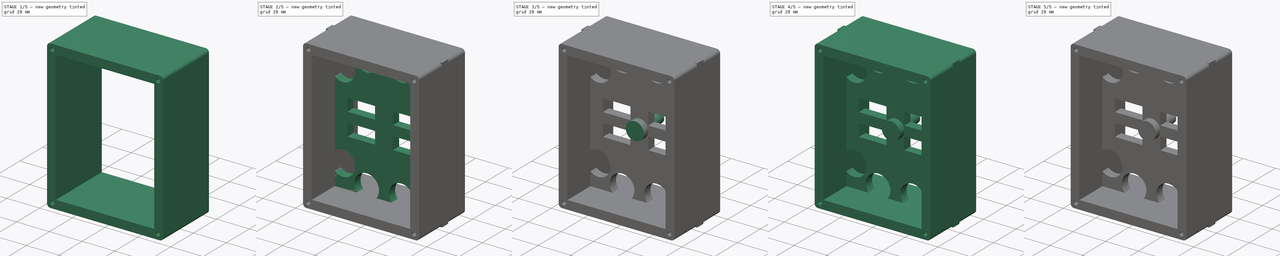
[diagram: build sequence overview — one tinted view per stage of 5, left to right]
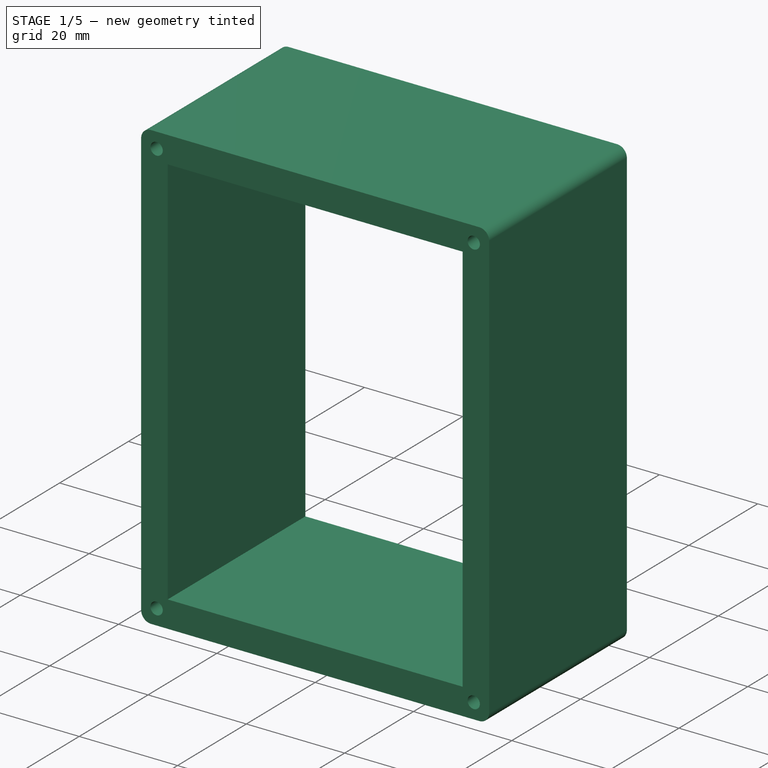
[diagram: stage 1 of 5 — iso view after this stage's code; geometry added in this stage tinted green]
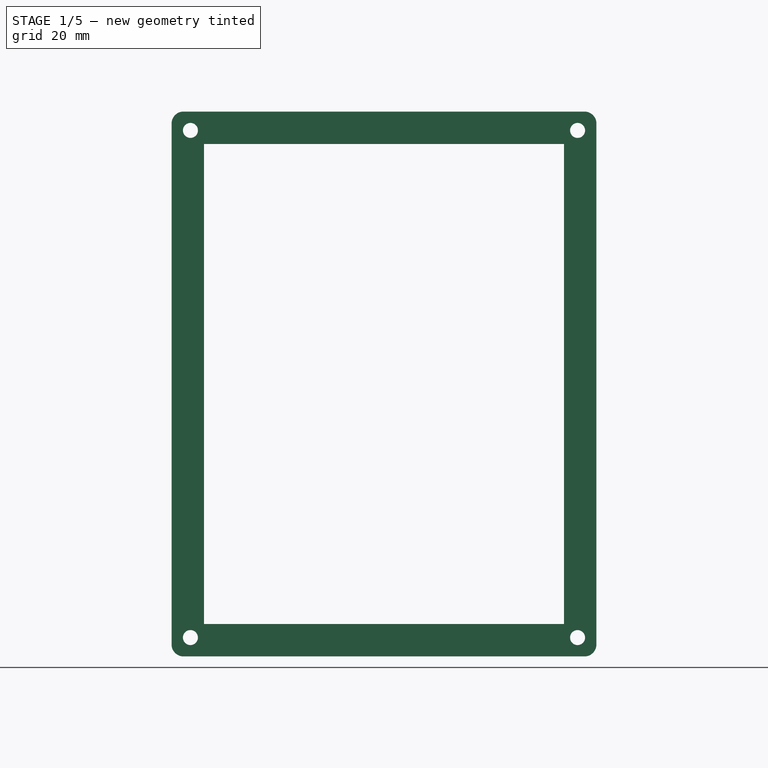
[diagram: stage 1 of 5 — front view after this stage's code; geometry added in this stage tinted green]
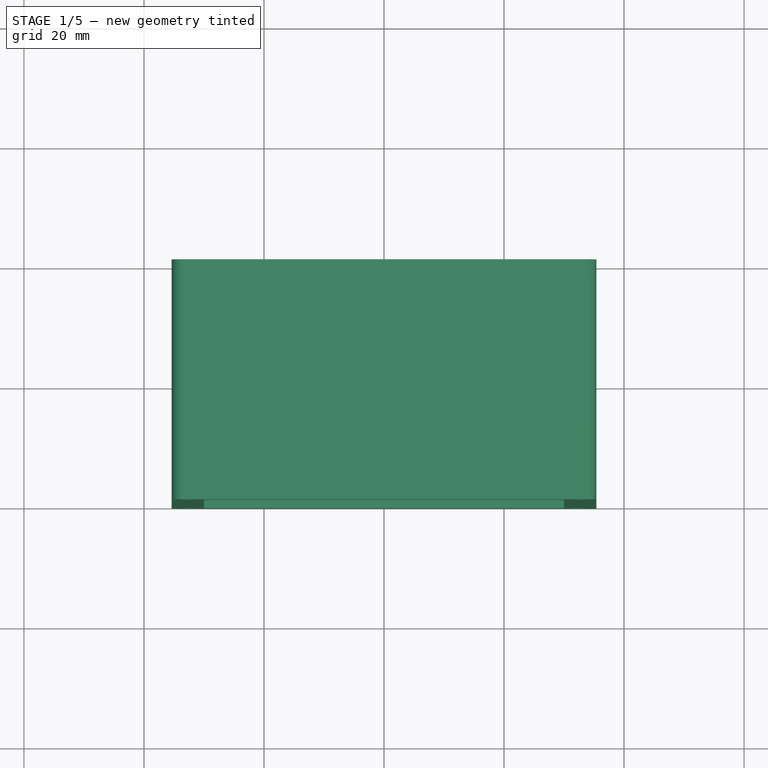
[diagram: stage 1 of 5 — top view after this stage's code; geometry added in this stage tinted green]
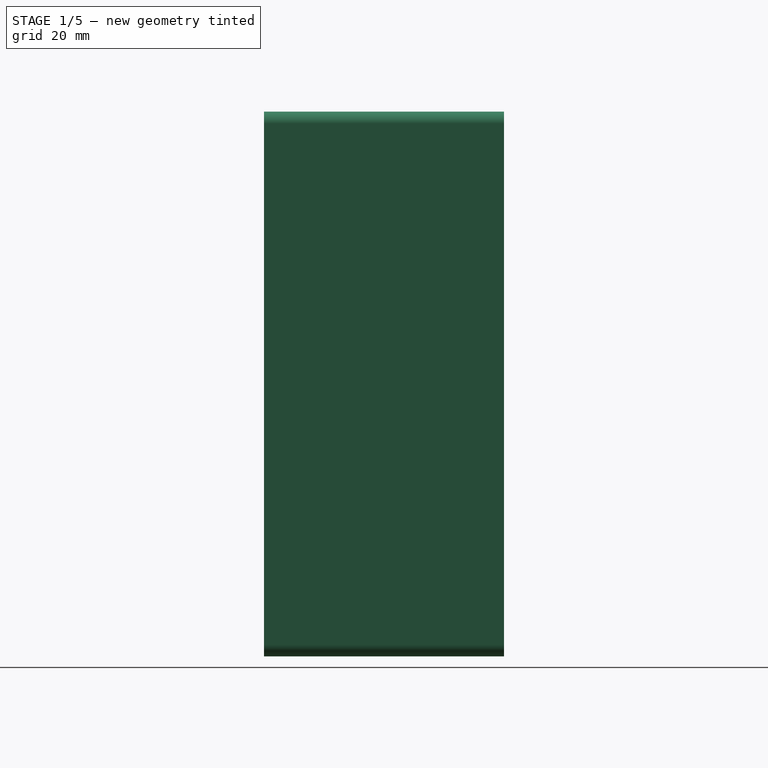
[diagram: stage 1 of 5 — right view after this stage's code; geometry added in this stage tinted green]
FCSTD DOCUMENT  (FreeCAD 1.0R39319 (Git))
Label: drone
License: All rights reserved
LicenseURL: https://en.wikipedia.org/wiki/All_rights_reserved
objects: PartDesign::Body×13, PartDesign::FeatureBase×8, Sketcher::SketchObject×6, App::DocumentObjectGroup×4, PartDesign::Mirrored×4, PartDesign::Pad×3, Spreadsheet::Sheet×2, PartDesign::Revolution×2, PartDesign::Pocket×1
note: 67 computed .brp shape members not serialized (recipe doc carries the construction recipe); baked Part::Feature solids carry a one-line shape summary decoded from their .brp

FEATURE [PartDesign::Body] Body014  label="topCap"
  AllowCompound = false
  Group = -> [Sketch004,Pad001,Mirrored002,Mirrored003]
  Origin = -> Origin014
  Placement = pos=(0,20,0) rot=(0,0,1;0rad)
  Tip = -> Mirrored003
  expr: .Placement.Base.y = <<sizes>>.cb_height / 2
FEATURE [Sketcher::SketchObject] Sketch005  label="bottomCapS"
  ArcFitTolerance = 1e-06
  AttachmentOffset = pos=(0,0,20) rot=(0,0,1;0rad)
  AttachmentSupport = -> [XZ_Plane003]
  FullyConstrained = true
  MakeInternals = false
  MapMode = 5
  Placement = pos=(0,-20,4.4e-15) rot=(1,0,0;1.5708rad)
  expr: .AttachmentOffset.Base.z = <<sizes>>.cb_height / 2
  expr: Constraints[13] = Sketch004.Constraints[13]
  expr: Constraints[17] = Sketch004.Constraints[17]
  expr: Constraints[18] = Sketch004.Constraints[14]
  expr: Constraints[5] = Sketch004.Constraints[3]
  expr: Constraints[6] = Sketch004.Constraints[3]
  sketch-geometry (12):
    g0: GeomPoint [constr] X=0 Y=0 Z=0
    g1: GeomPoint [constr] X=0 Y=0 Z=0
    g2: GeomPoint [constr] X=0 Y=0 Z=0
    g3: LineSegment StartX=0 StartY=0 StartZ=0 EndX=0 EndY=2 EndZ=0
    g4: LineSegment StartX=-2 StartY=0 StartZ=0 EndX=0 EndY=0 EndZ=0
    g5: ArcOfCircle CenterX=-2 CenterY=2 CenterZ=0 NormalX=0 NormalY=0 NormalZ=1 AngleXU=0 Radius=2 StartAngle=4.71239 EndAngle=6.28319
    g6: GeomPoint [constr] X=0 Y=0 Z=0
    g7: Circle CenterX=-4.42892 CenterY=0.358107 CenterZ=0 NormalX=0 NormalY=0 NormalZ=1 AngleXU=0 Radius=1.25
    g8: LineSegment StartX=0 StartY=0 StartZ=0 EndX=0 EndY=0 EndZ=0
    g9: LineSegment StartX=0 StartY=0 StartZ=0 EndX=0 EndY=0 EndZ=0
    g10: LineSegment [constr] StartX=-4.42892 StartY=0.358107 StartZ=0 EndX=0 EndY=0 EndZ=0
    g11: LineSegment [constr] StartX=-4.42892 StartY=0.358107 StartZ=0 EndX=0 EndY=0 EndZ=0
  constraints (19):
    c: Coincident(g3,g0)
    c: Vertical(g3)
    c: Coincident(g6,g1)
    c: Coincident(g4,g2)
    c: PointOnObject(g2,g-2)
    c: Radius(g5) = 2.5
    c: Diameter(g7) = 2.5
    c: Coincident(g8,g0)
    c: Coincident(g9,g8)
    c: Coincident(g9,g2)
    c: Coincident(g10,g7)
    c: Coincident(g3,g5)
    c: Coincident(g4,g5)
    c: Distance(g10) = 4.44338
    c: Equal(g3,g4)
    c: PointOnObject(g1,g3)
    c: PointOnObject(g1,g4)
    c: Angle(g3,g4) = 0
    c: Distance(g3,g4) = 15
FEATURE [PartDesign::Pad] Pad
  Direction = (0,-1,2e-16)
  Length = 40
  Length2 = 10
  Midplane = true
  Placement = pos=(0,0,0) rot=(1,0,0;1.5708rad)
  Profile = -> Sketch003
  ReferenceAxis = -> Sketch003 [N_Axis]
  Refine = true
  Suppressed = false
  Type = 0
  expr: Length = <<sizes>>.cb_height
FEATURE [PartDesign::Pad] Pad002
  BaseFeature = -> Pad
  Direction = (0,-1,2e-16)
  Length = 2.7
  Length2 = 10
  Placement = pos=(0,0,0) rot=(1,0,0;1.5708rad)
  Profile = -> Sketch005
  ReferenceAxis = -> Sketch005 [N_Axis]
  Refine = true
  Suppressed = false
  Type = 0
  expr: Length = <<sizes>>.cb_wall_thickness / 2
FEATURE [PartDesign::Mirrored] Mirrored  label="cb_half"
  BaseFeature = -> Pad002
  MirrorPlane = -> Sketch005 [V_Axis]
  Originals = -> [Pad002]
  Placement = pos=(0,0,0) rot=(1,0,0;1.5708rad)
  Refine = true
  Suppressed = false
  TransformMode = 1
FEATURE [PartDesign::Mirrored] Mirrored004  label="cb_full"
  BaseFeature = -> Mirrored
  MirrorPlane = -> XY_Plane003
  Originals = -> [Mirrored]
  Placement = pos=(0,0,0) rot=(1,0,0;1.5708rad)
  Refine = true
  Suppressed = false
  TransformMode = 1
FEATURE [PartDesign::Body] Body003  label="centerBox"
  AllowCompound = false
  Group = -> [Sketch003,Sketch005,Pad,Pad002,Mirrored,Mirrored004]
  Origin = -> Origin003
  Tip = -> Mirrored004
FEATURE [App::DocumentObjectGroup] Group001  label="frame"
  Group = -> [Body008,Group002,Body003]
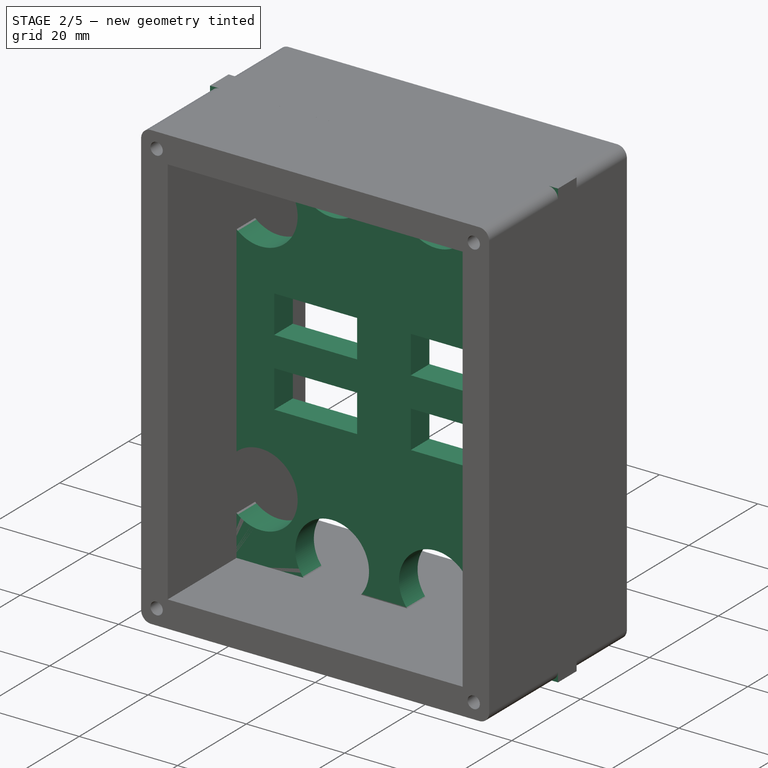
[diagram: stage 2 of 5 — iso view after this stage's code; geometry added in this stage tinted green]
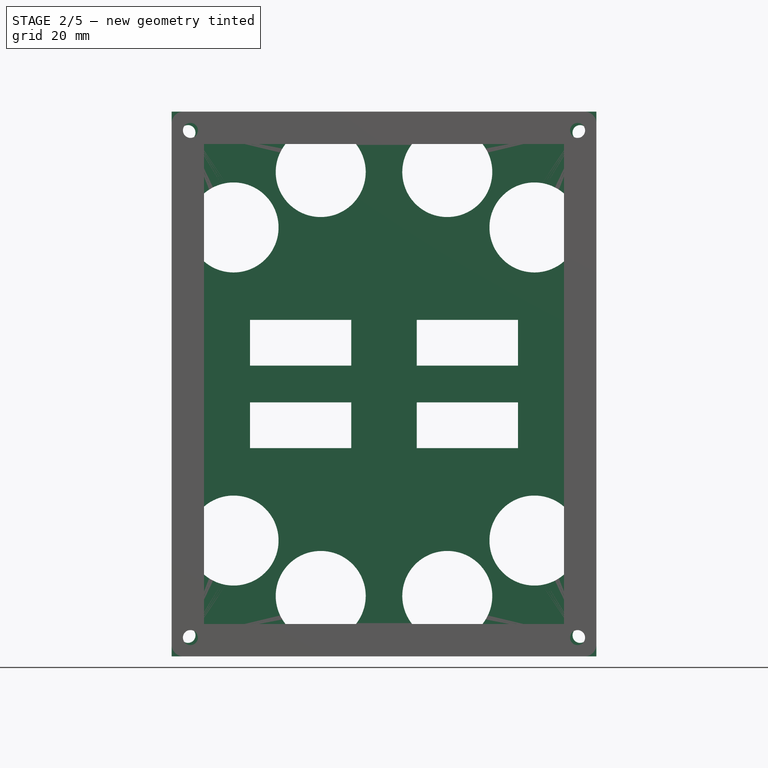
[diagram: stage 2 of 5 — front view after this stage's code; geometry added in this stage tinted green]
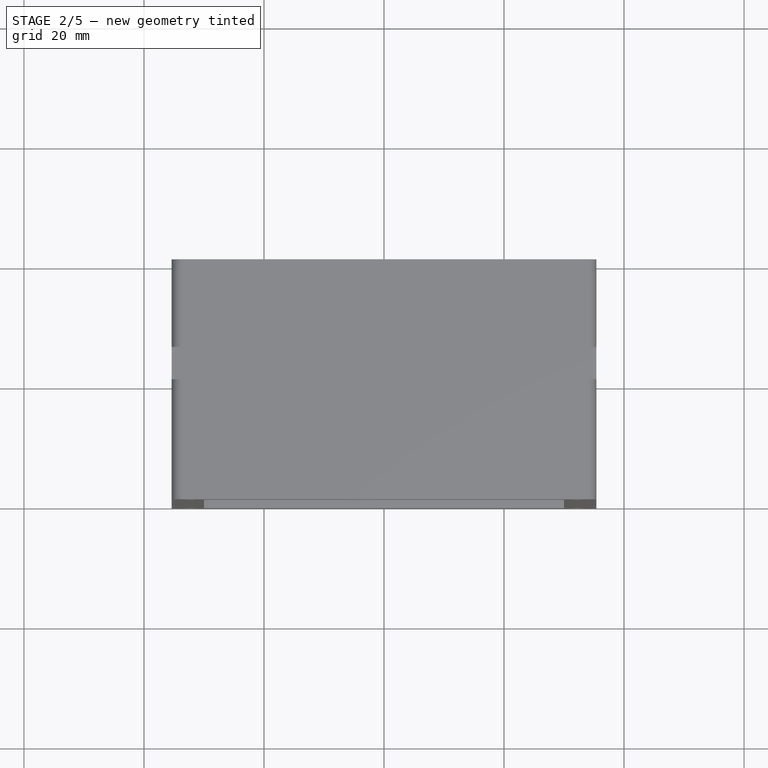
[diagram: stage 2 of 5 — top view after this stage's code; geometry added in this stage tinted green]
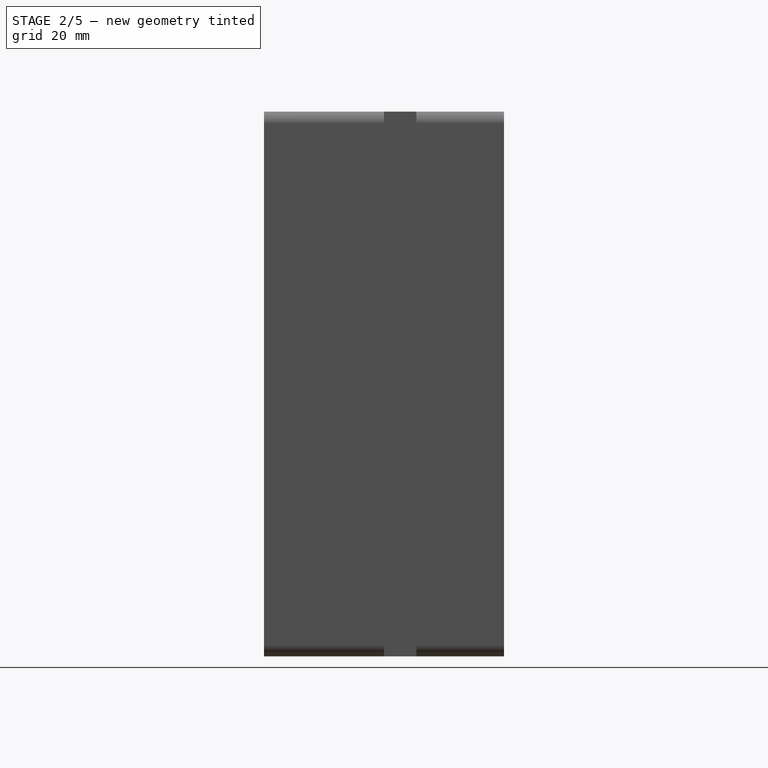
[diagram: stage 2 of 5 — right view after this stage's code; geometry added in this stage tinted green]
FEATURE [PartDesign::Body] Body013  label="mh4"
  AllowCompound = false
  Group = -> [Clone008]
  Origin = -> Origin013
  Placement = pos=(0,0,-100) rot=(0,0,1;0rad)
  Tip = -> Clone008
  expr: .Placement.Base.z = -<<sizes>>.mhd_length
FEATURE [App::DocumentObjectGroup] Group002  label="motorHolders"
  Group = -> [Body004,Body005,Body006,Body013]
FEATURE [Sketcher::SketchObject] Sketch004  label="topCap_quarterS"
  ArcFitTolerance = 1e-06
  AttachmentSupport = -> [XZ_Plane014]
  FullyConstrained = false
  MakeInternals = false
  MapMode = 5
  Placement = pos=(0,0,0) rot=(1,0,0;1.5708rad)
  expr: Constraints[13] = <<centerBox_quarterS>>.Constraints.cb_screwHole_distanceFrmCorner
  expr: Constraints[14] = <<sizes>>.cb_tc_ph_r * 2
  expr: Constraints[24] = <<centerBox_quarterS>>.Constraints.cb_tc_l
  expr: Constraints[25] = <<centerBox_quarterS>>.Constraints.cb_tc_width
  expr: Constraints[3] = Sketch003.Constraints[36]
  sketch-geometry (17):
    g0: GeomPoint [constr] X=-35.4 Y=0 Z=0
    g1: GeomPoint [constr] X=-35.4 Y=45.4 Z=0
    g2: GeomPoint [constr] X=0 Y=45.4 Z=0
    g3: GeomPoint [constr] X=-35.4 Y=45.4 Z=0
    g4: Circle CenterX=-32.6678 CenterY=41.8959 CenterZ=0 NormalX=0 NormalY=0 NormalZ=1 AngleXU=0 Radius=1.25
    g5: LineSegment StartX=-35.4 StartY=0 StartZ=0 EndX=0 EndY=0 EndZ=0
    g6: LineSegment StartX=0 StartY=0 StartZ=0 EndX=0 EndY=45.4 EndZ=0
    g7: LineSegment [constr] StartX=-32.6678 StartY=41.8959 StartZ=0 EndX=-35.4 EndY=45.4 EndZ=0
    g8: LineSegment [constr] StartX=-32.6678 StartY=41.8959 StartZ=0 EndX=0 EndY=0 EndZ=0
    g9: Circle CenterX=-25.0705 CenterY=26.0892 CenterZ=0 NormalX=0 NormalY=0 NormalZ=1 AngleXU=0 Radius=7.5
    g10: Circle CenterX=-10.5467 CenterY=35.3214 CenterZ=0 NormalX=0 NormalY=0 NormalZ=1 AngleXU=0 Radius=7.5
    g11: LineSegment StartX=-22.3312 StartY=10.6804 StartZ=0 EndX=-22.3312 EndY=3.05451 EndZ=0
    g12: LineSegment StartX=-22.3312 StartY=3.05451 StartZ=0 EndX=-5.45733 EndY=3.05451 EndZ=0
    g13: LineSegment StartX=-5.45733 StartY=3.05451 StartZ=0 EndX=-5.45733 EndY=10.6804 EndZ=0
    g14: LineSegment StartX=-5.45733 StartY=10.6804 StartZ=0 EndX=-22.3312 EndY=10.6804 EndZ=0
    g15: LineSegment StartX=-35.4 StartY=0 StartZ=0 EndX=-35.4 EndY=45.4 EndZ=0
    g16: LineSegment StartX=-35.4 StartY=45.4 StartZ=0 EndX=0 EndY=45.4 EndZ=0
  constraints (32):
    c: PointOnObject(g0,g-1)
    c: Coincident(g3,g1)
    c: PointOnObject(g2,g-2)
    c: Diameter(g4) = 2.5
    c: Coincident(g5,g0)
    c: Coincident(g5,g-1)
    c: Coincident(g6,g5)
    c: Coincident(g6,g2)
    c: Coincident(g7,g4)
    c: Coincident(g7,g1)
    c: Coincident(g8,g7)
    c: Coincident(g8,g5)
    c: Parallel(g7,g8)
    c: Distance(g7) = 4.44338
    c: Diameter(g9) = 15
    c: Equal(g9,g10)
    c: Coincident(g11,g12)
    c: Coincident(g12,g13)
    c: Coincident(g13,g14)
    c: Coincident(g14,g11)
    c: Vertical(g11)
    c: Vertical(g13)
    c: Horizontal(g12)
    c: Horizontal(g14)
    c: DistanceY(g6,g6) = 45.4
    c: DistanceX(g0,g5) = 35.4
    c: Coincident(g15,g0)
    c: Coincident(g15,g1)
    c: Vertical(g15)
    c: Coincident(g16,g1)
    c: Coincident(g16,g2)
    c: Horizontal(g16)
FEATURE [PartDesign::Pad] Pad001  label="topCap_quarterE"
  Direction = (0,-1,2e-16)
  Length = 5.4
  Length2 = 10
  Placement = pos=(0,0,0) rot=(1,0,0;1.5708rad)
  Profile = -> Sketch004
  ReferenceAxis = -> Sketch004 [N_Axis]
  Refine = true
  Reversed = true
  Suppressed = false
  Type = 0
  expr: Length = <<sizes>>.cb_wall_thickness
FEATURE [PartDesign::Mirrored] Mirrored002  label="tc_half"
  BaseFeature = -> Pad001
  MirrorPlane = -> Sketch004 [V_Axis]
  Originals = -> [Pad001]
  Placement = pos=(0,0,0) rot=(1,0,0;1.5708rad)
  Refine = true
  Suppressed = false
  TransformMode = 0
FEATURE [PartDesign::Mirrored] Mirrored003  label="tc_full"
  BaseFeature = -> Mirrored002
  MirrorPlane = -> XY_Plane014
  Originals = -> [Mirrored002]
  Placement = pos=(0,0,0) rot=(1,0,0;1.5708rad)
  Refine = true
  Suppressed = false
  TransformMode = 1
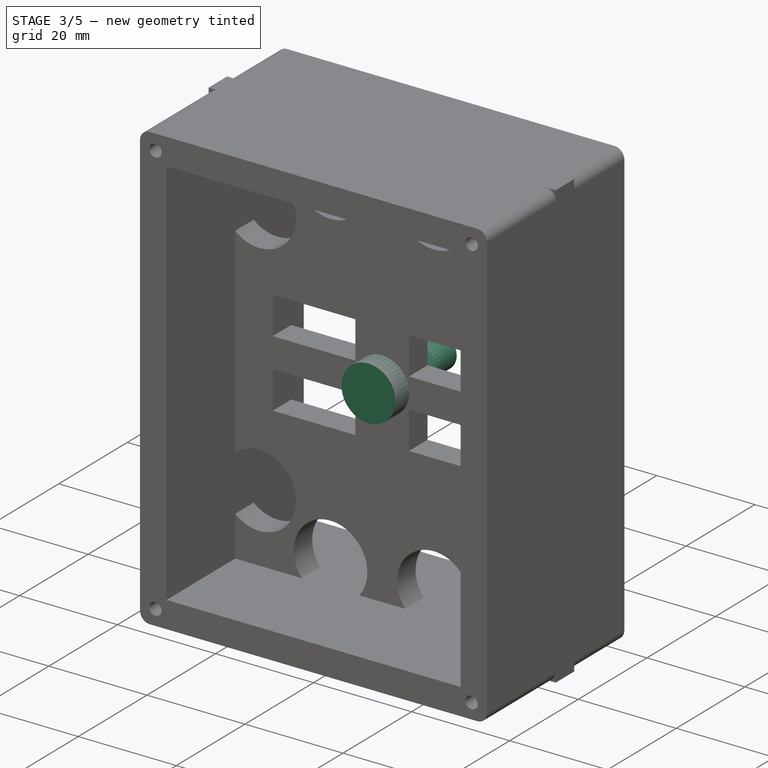
[diagram: stage 3 of 5 — iso view after this stage's code; geometry added in this stage tinted green]
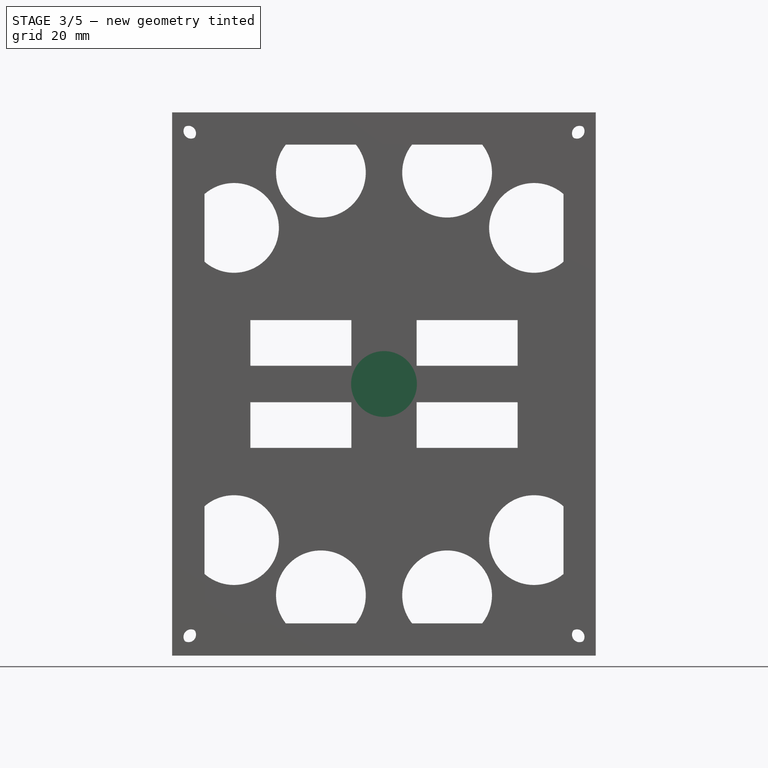
[diagram: stage 3 of 5 — front view after this stage's code; geometry added in this stage tinted green]
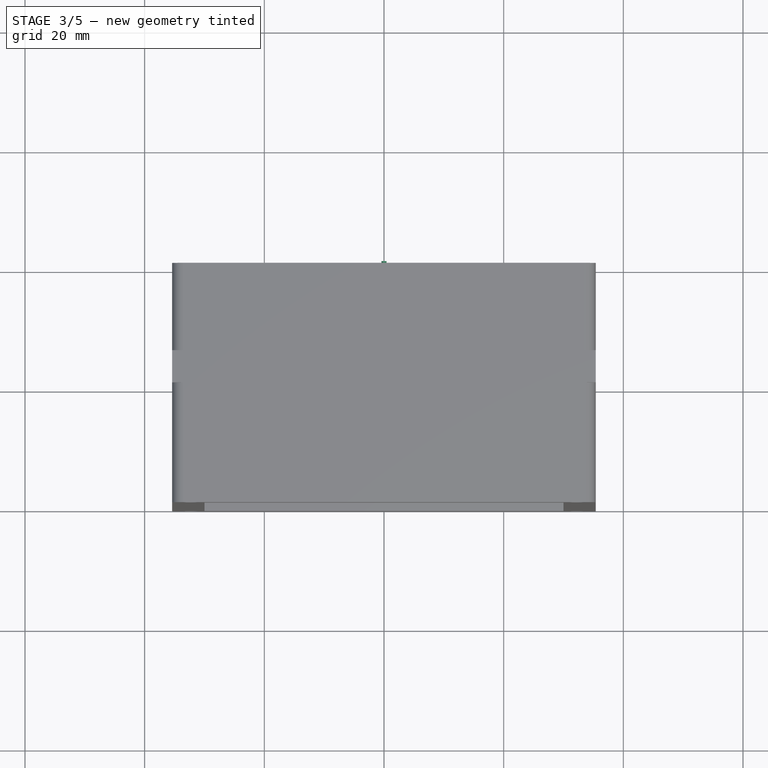
[diagram: stage 3 of 5 — top view after this stage's code; geometry added in this stage tinted green]
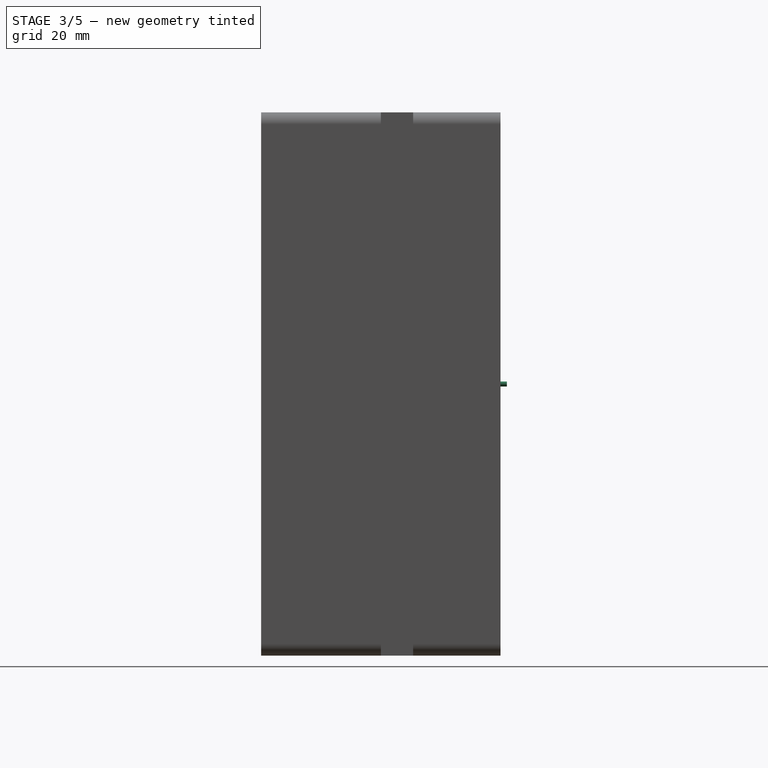
[diagram: stage 3 of 5 — right view after this stage's code; geometry added in this stage tinted green]
FEATURE [Spreadsheet::Sheet] Spreadsheet  label="properties"
  cells = A1='edge fillet radius; C1='motor; D1='height; E1='radius; F1='out wires distance ratio; A2(fcr)==2 mm; C2='motor; D2(mh)==16.7 mm; E2(mr)==3.5 mm; F2(motor_outWires_distance_ratio)==5.6 mm / 7 mm; A4='screwInsert; C4='screws; D4='inner diameter; A5(cb_cushion)==0.5 mm; C5='centerBox; D5(cb_screw_id)==3 mm; A7='wall thickness; C7='screw insert; D7='dia; A8(wall_thickness)==2 mm; C8='centerBox; D8(cb_si_dia)==4.4 mm
FEATURE [Sketcher::SketchObject] Sketch  label="motorS"
  ArcFitTolerance = 1e-06
  AttachmentSupport = -> [XY_Plane]
  FullyConstrained = true
  MakeInternals = false
  MapMode = 5
  expr: Constraints[10] = <<sizes>>.mr
  expr: Constraints[20] = <<sizes>>.sr
  expr: Constraints[21] = <<sizes>>.sh
  expr: Constraints[9] = <<sizes>>.mh
  sketch-geometry (8):
    g0: LineSegment StartX=0 StartY=0 StartZ=0 EndX=3.5 EndY=0 EndZ=0
    g1: LineSegment StartX=3.5 StartY=0 StartZ=0 EndX=3.5 EndY=16.7 EndZ=0
    g2: LineSegment StartX=3.5 StartY=16.7 StartZ=0 EndX=0 EndY=16.7 EndZ=0
    g3: LineSegment StartX=0 StartY=16.7 StartZ=0 EndX=0 EndY=0 EndZ=0
    g4: LineSegment StartX=0 StartY=16.7 StartZ=0 EndX=0.41 EndY=16.7 EndZ=0
    g5: LineSegment StartX=0.41 StartY=16.7 StartZ=0 EndX=0.41 EndY=21.06 EndZ=0
    g6: LineSegment StartX=0 StartY=21.06 StartZ=0 EndX=0 EndY=16.7 EndZ=0
    g7: LineSegment StartX=0 StartY=21.06 StartZ=0 EndX=0.41 EndY=21.06 EndZ=0
  constraints (22):
    c: Coincident(g0,g1)
    c: Coincident(g1,g2)
    c: Coincident(g2,g3)
    c: Coincident(g3,g0)
    c: Horizontal(g0)
    c: Horizontal(g2)
    c: Vertical(g1)
    c: Vertical(g3)
    c: Coincident(g0,g-1)
    c: DistanceY(g3,g3) = 16.7
    c: DistanceX(g2,g2) = 3.5
    c: Coincident(g4,g5)
    c: Coincident(g6,g4)
    c: Horizontal(g4)
    c: Vertical(g5)
    c: Vertical(g6)
    c: Coincident(g4,g2)
    c: Coincident(g7,g6)
    c: Coincident(g7,g5)
    c: Horizontal(g7)
    c: Distance(g5,g6) = 0.41
    c: DistanceY(g6,g6) = 4.36
FEATURE [PartDesign::Revolution] Revolution  label="motorR"
  Angle = 360
  Angle2 = 60
  Axis = (0,1,0)
  Base = (0,0,0)
  Profile = -> Sketch
  ReferenceAxis = -> Sketch [V_Axis]
  Refine = true
  Reversed = true
  Suppressed = false
  Type = 0
FEATURE [PartDesign::Body] Body  label="motor"
  AllowCompound = false
  Group = -> [Sketch,Revolution]
  Origin = -> Origin
  Tip = -> Revolution
FEATURE [Sketcher::SketchObject] Sketch001  label="motorMount"
  ArcFitTolerance = 1e-06
  AttachmentSupport = -> [YZ_Plane001]
  FullyConstrained = true
  MakeInternals = false
  MapMode = 5
  Placement = pos=(0,0,0) rot=(0.57735,0.57735,0.57735;2.0944rad)
  expr: Constraints[20] = <<sizes>>.motor_outWires_height
  expr: Constraints[21] = <<sizes>>.mh_base_thickness
  expr: Constraints[25] = <<sizes>>.motor_outWires_distance / 2
  expr: Constraints[26] = <<sizes>>.mh_ir
  expr: Constraints[28] = <<sizes>>.mh_height
  expr: Constraints[29] = <<sizes>>.mh_or
  sketch-geometry (10):
    g0: LineSegment StartX=-4 StartY=0 StartZ=0 EndX=-4 EndY=3.5 EndZ=0
    g1: LineSegment StartX=-4 StartY=3.5 StartZ=0 EndX=-4 EndY=5.5 EndZ=0
    g2: LineSegment StartX=-4 StartY=5.5 StartZ=0 EndX=0 EndY=5.5 EndZ=0
    g3: LineSegment StartX=0 StartY=5.5 StartZ=0 EndX=8.35 EndY=5.5 EndZ=0
    g4: LineSegment StartX=8.35 StartY=5.5 StartZ=0 EndX=8.35 EndY=3.5 EndZ=0
    g5: LineSegment StartX=8.35 StartY=3.5 StartZ=0 EndX=0 EndY=3.5 EndZ=0
    g6: LineSegment StartX=0 StartY=3.5 StartZ=0 EndX=0 EndY=2.8 EndZ=0
    g7: LineSegment StartX=0 StartY=2.8 StartZ=0 EndX=-2 EndY=2.8 EndZ=0
    g8: LineSegment StartX=-2 StartY=2.8 StartZ=0 EndX=-2 EndY=0 EndZ=0
    g9: LineSegment StartX=-2 StartY=0 StartZ=0 EndX=-4 EndY=0 EndZ=0
  constraints (30):
    c: PointOnObject(g0,g-1)
    c: Vertical(g0)
    c: Coincident(g0,g1)
    c: Vertical(g1)
    c: Coincident(g1,g2)
    c: PointOnObject(g2,g-2)
    c: Horizontal(g2)
    c: Coincident(g2,g3)
    c: Horizontal(g3)
    c: Coincident(g3,g4)
    c: Vertical(g4)
    c: Coincident(g4,g5)
    c: PointOnObject(g5,g-2)
    c: Horizontal(g5)
    c: Coincident(g5,g6)
    c: PointOnObject(g6,g-2)
    c: Coincident(g6,g7)
    c: Horizontal(g7)
    c: Coincident(g7,g8)
    c: Vertical(g8)
    c: Distance(g7,g7) = 2
    c: DistanceX(g2,g2) = 4
    c: Coincident(g9,g8)
    c: Coincident(g9,g0)
    c: Horizontal(g9)
    c: DistanceY(g8,g8) = 2.8
    c: DistanceY(g0,g0) = 3.5
    c: Equal(g1,g4)
    c: DistanceX(g3,g3) = 8.35
    c: DistanceY(g0,g1) = 5.5
FEATURE [Sketcher::SketchObject] Sketch002  label="outWires_hole"
  ArcFitTolerance = 1e-06
  AttachmentSupport = -> [YZ_Plane001]
  FullyConstrained = true
  MakeInternals = false
  MapMode = 5
  Placement = pos=(0,0,0) rot=(0.57735,0.57735,0.57735;2.0944rad)
  expr: Constraints[13] = <<sizes>>.motor_outWires_distance / 2
  expr: Constraints[14] = <<sizes>>.motor_outWires_height
  sketch-geometry (8):
    g0: GeomPoint [constr] X=0 Y=1.4 Z=0
    g1: GeomPoint [constr] X=0 Y=-1.4 Z=0
    g2: GeomPoint [constr] X=-2 Y=-1.4 Z=0
    g3: GeomPoint [constr] X=-2 Y=1.4 Z=0
    g4: LineSegment StartX=-2 StartY=1.4 StartZ=0 EndX=0 EndY=1.4 EndZ=0
    g5: LineSegment StartX=0 StartY=-1.4 StartZ=0 EndX=-2 EndY=-1.4 EndZ=0
    g6: LineSegment StartX=-2 StartY=1.4 StartZ=0 EndX=-2 EndY=-1.4 EndZ=0
    g7: LineSegment StartX=0 StartY=1.4 StartZ=0 EndX=0 EndY=-1.4 EndZ=0
  constraints (15):
    c: PointOnObject(g0,g-2)
    c: Symmetric(g0,g1,g-1)
    c: Coincident(g4,g3)
    c: Coincident(g4,g0)
    c: Parallel(g4,g-1)
    c: Coincident(g5,g1)
    c: Coincident(g5,g2)
    c: Horizontal(g5)
    c: Equal(g4,g5)
    c: Coincident(g6,g3)
    c: Coincident(g6,g2)
    c: Coincident(g7,g0)
    c: Coincident(g7,g1)
    c: DistanceY(g7,g7) = 2.8
    c: DistanceX(g5,g5) = 2
FEATURE [PartDesign::Revolution] Revolution001  label="motorHolderR"
  Angle = 360
  Angle2 = 60
  Axis = (0,1,0)
  Base = (0,0,0)
  Placement = pos=(0,0,0) rot=(1,1,1;2.0944rad)
  Profile = -> Sketch001
  ReferenceAxis = -> Sketch001 [H_Axis]
  Refine = true
  Suppressed = false
  Type = 0
FEATURE [PartDesign::Pocket] Pocket
  BaseFeature = -> Revolution001
  Direction = (-1,0,0)
  Length = 5.5
  Length2 = 5
  Placement = pos=(0,0,0) rot=(1,1,1;2.0944rad)
  Profile = -> Sketch002
  ReferenceAxis = -> Sketch002 [N_Axis]
  Refine = true
  Suppressed = false
  Type = 0
  expr: Length = <<sizes>>.mr + <<sizes>>.mh_wallThickness
FEATURE [PartDesign::Body] Body012  label="motor4"
  AllowCompound = false
  Group = -> [Clone007]
  Origin = -> Origin012
  Placement = pos=(0,0,-100) rot=(0,0,1;0rad)
  Tip = -> Clone007
  expr: .Placement.Base.z = <<mh4>>.Placement.Base.z
FEATURE [App::DocumentObjectGroup] Group003  label=" motors"
  Group = -> [Body011,Body010,Body009,Body012]
FEATURE [PartDesign::FeatureBase] Clone008
  BaseFeature = -> Body001
  Suppressed = false
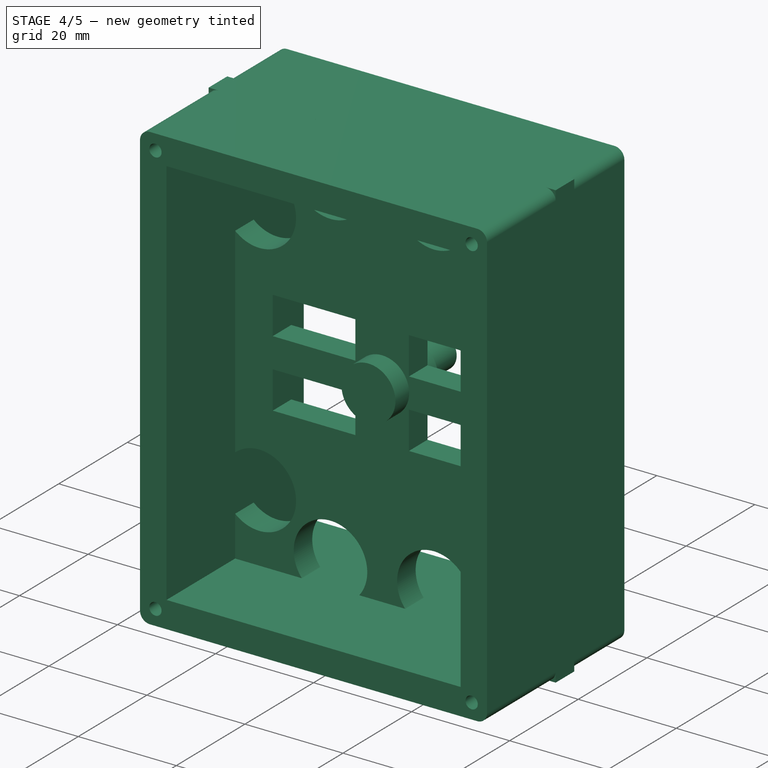
[diagram: stage 4 of 5 — iso view after this stage's code; geometry added in this stage tinted green]
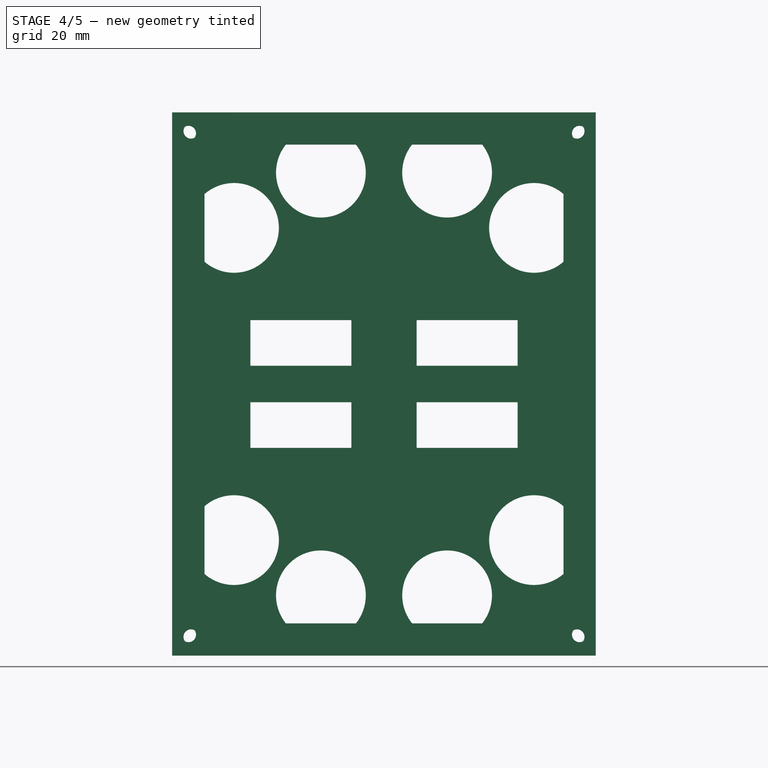
[diagram: stage 4 of 5 — front view after this stage's code; geometry added in this stage tinted green]
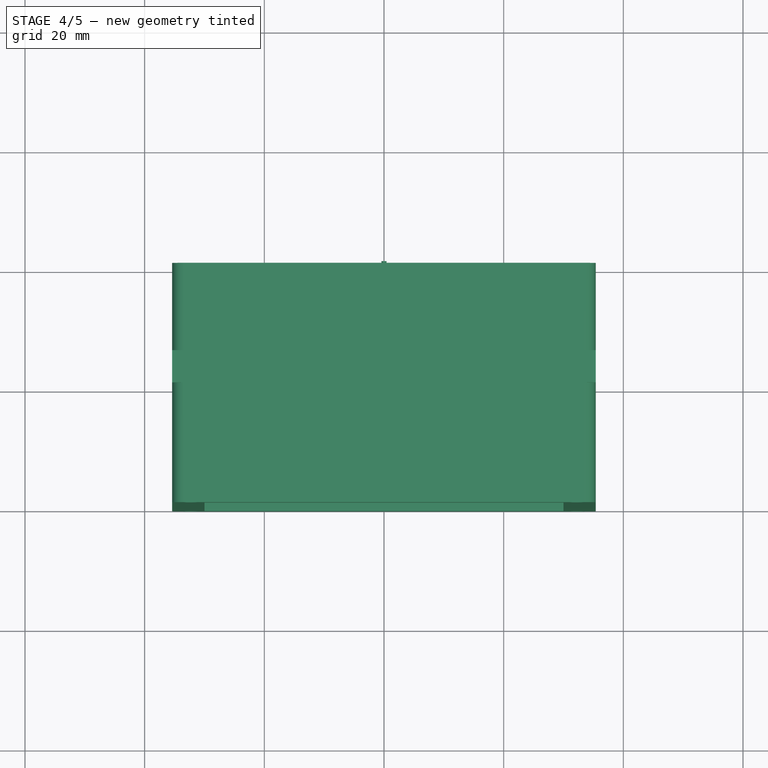
[diagram: stage 4 of 5 — top view after this stage's code; geometry added in this stage tinted green]
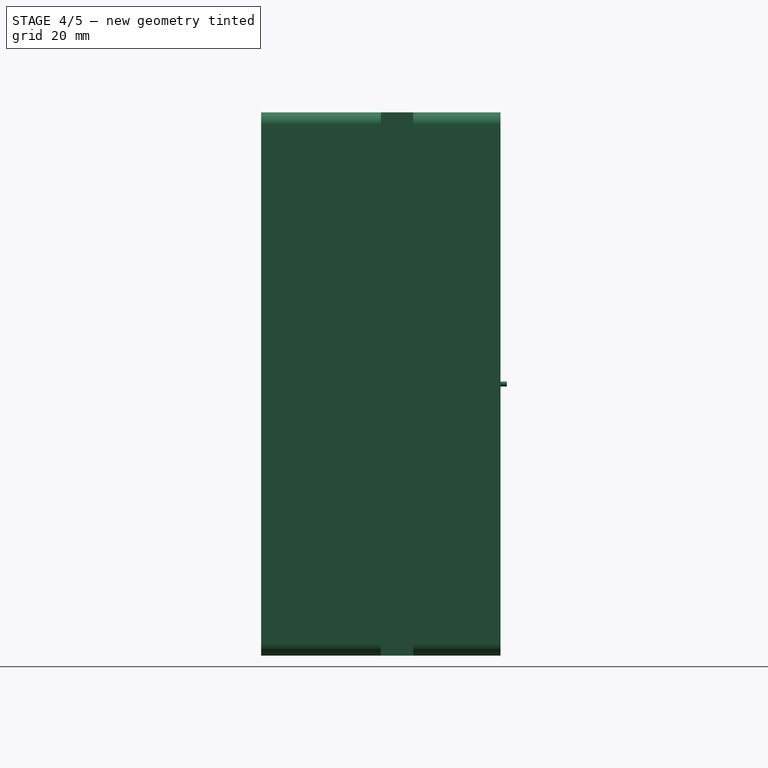
[diagram: stage 4 of 5 — right view after this stage's code; geometry added in this stage tinted green]
FEATURE [PartDesign::Body] Body001  label="motorHolder"
  AllowCompound = false
  Group = -> [Sketch001,Sketch002,Revolution001,Pocket]
  Origin = -> Origin001
  Tip = -> Pocket
FEATURE [Sketcher::SketchObject] Sketch003  label="centerBox_quarterS"
  ArcFitTolerance = 1e-06
  AttachmentSupport = -> [XZ_Plane003]
  FullyConstrained = true
  MakeInternals = false
  MapMode = 5
  Placement = pos=(0,0,0) rot=(1,0,0;1.5708rad)
  expr: Constraints[27] = <<sizes>>.cb_wall_thickness
  expr: Constraints[28] = <<sizes>>.cb_length / 2
  expr: Constraints[29] = <<sizes>>.cb_width / 2
  expr: Constraints[34] = <<sizes>>.cb_wall_curve_radius
  expr: Constraints[36] = <<sizes>>.cb_screw_id
  sketch-geometry (24):
    g0: GeomPoint [constr] X=-35.4 Y=0 Z=0
    g1: GeomPoint [constr] X=-30 Y=0 Z=0
    g2: GeomPoint [constr] X=-30 Y=40 Z=0
    g3: GeomPoint [constr] X=0 Y=40 Z=0
    g4: GeomPoint [constr] X=-35.4 Y=40 Z=0
    g5: GeomPoint [constr] X=-35.4 Y=45.4 Z=0
    g6: GeomPoint [constr] X=-30 Y=45.4 Z=0
    g7: GeomPoint [constr] X=0 Y=45.4 Z=0
    g8: LineSegment StartX=-30 StartY=0 StartZ=0 EndX=-30 EndY=40 EndZ=0
    g9: LineSegment StartX=-30 StartY=40 StartZ=0 EndX=0 EndY=40 EndZ=0
    g10: LineSegment StartX=-35.4 StartY=0 StartZ=0 EndX=-35.4 EndY=40 EndZ=0
    g11: LineSegment StartX=-35.4 StartY=40 StartZ=0 EndX=-35.4 EndY=43.4 EndZ=0
    g12: LineSegment StartX=-33.4 StartY=45.4 StartZ=0 EndX=-30 EndY=45.4 EndZ=0
    g13: LineSegment StartX=-30 StartY=45.4 StartZ=0 EndX=0 EndY=45.4 EndZ=0
    g14: LineSegment [constr] StartX=-30 StartY=40 StartZ=0 EndX=-35.4 EndY=40 EndZ=0
    g15: LineSegment [constr] StartX=-30 StartY=40 StartZ=0 EndX=-30 EndY=45.4 EndZ=0
    g16: ArcOfCircle CenterX=-33.4 CenterY=43.4 CenterZ=0 NormalX=0 NormalY=0 NormalZ=1 AngleXU=0 Radius=2 StartAngle=1.5708 EndAngle=3.14159
    g17: GeomPoint [constr] X=-35.4 Y=45.4 Z=0
    g18: Circle CenterX=-32.2581 CenterY=42.2581 CenterZ=0 NormalX=0 NormalY=0 NormalZ=1 AngleXU=0 Radius=1.25
    g19: LineSegment [constr] StartX=-30 StartY=40 StartZ=0 EndX=-32.2581 EndY=42.2581 EndZ=0
    g20: LineSegment [constr] StartX=-33.1419 StartY=43.1419 StartZ=0 EndX=-35.4 EndY=45.4 EndZ=0
    g21: LineSegment [constr] StartX=-33.1419 StartY=43.1419 StartZ=0 EndX=-32.2581 EndY=42.2581 EndZ=0
    g22: LineSegment StartX=-35.4 StartY=0 StartZ=0 EndX=-30 EndY=0 EndZ=0
    g23: LineSegment StartX=0 StartY=45.4 StartZ=0 EndX=0 EndY=40 EndZ=0
  constraints (54):
    c: PointOnObject(g0,g-1)
    c: PointOnObject(g1,g-1)
    c: PointOnObject(g3,g-2)
    c: Coincident(g8,g1)
    c: Coincident(g8,g2)
    c: Vertical(g8)
    c: Coincident(g8,g9)
    c: Coincident(g9,g3)
    c: Coincident(g10,g0)
    c: Coincident(g10,g4)
    c: Vertical(g10)
    c: Coincident(g10,g11)
    c: Coincident(g17,g5)
    c: Coincident(g12,g6)
    c: Coincident(g12,g13)
    c: Coincident(g13,g7)
    c: PointOnObject(g7,g-2)
    c: Parallel(g11,g10)
    c: Parallel(g12,g13)
    c: PointOnObject(g6,g8)
    c: PointOnObject(g4,g9)
    c: Coincident(g14,g2)
    c: Coincident(g14,g4)
    c: Horizontal(g14)
    c: Coincident(g15,g2)
    c: Coincident(g15,g6)
    c: Parallel(g13,g9)
    c: DistanceY(g15,g15) = 5.4
    c: DistanceY(g8,g8) = 40
    c: DistanceX(g9,g9) = 30
    c: PointOnObject(g17,g12)
    c: PointOnObject(g17,g11)
    c: Tangent(g12,g16) = 1.5708
    c: Tangent(g11,g16) = 1.5708
    c: Radius(g16) = 2
    c: Equal(g14,g15)
    c: Diameter(g18) = 2.5
    c: Coincident(g19,g2)
    c: Coincident(g19,g18)
    c: PointOnObject(g20,g18)
    c: Coincident(g20,g5)
    c: Coincident(g21,g20)
    c: Coincident(g21,g18)
    c: Parallel(g20,g21)
    c: Parallel(g21,g19)
    c: Equal(g19,g20)
    c: Coincident(g22,g0)
    c: Coincident(g22,g1)
    c: Coincident(g23,g7)
    c: Coincident(g23,g3)
    c: DistanceY(g0,g5) = 45.4  'cb_tc_l'
    c: DistanceX(g5,g-1) = 35.4  'cb_tc_width'
    c: Distance(g18,g5) = 4.44338  'cb_screwHole_distanceFrmCorner'
    c: Distance(g11,g12) = 2.82843  'fillet_points_distance'
FEATURE [PartDesign::FeatureBase] Clone
  BaseFeature = -> Body001
  Suppressed = false
FEATURE [PartDesign::Body] Body010  label="motor2"
  AllowCompound = false
  Group = -> [Clone005]
  Origin = -> Origin010
  Placement = pos=(-100,0,0) rot=(0,0,1;0rad)
  Tip = -> Clone005
  expr: .Placement.Base.x = <<mh2>>.Placement.Base.x
FEATURE [PartDesign::FeatureBase] Clone006
  BaseFeature = -> Body
  Suppressed = false
FEATURE [PartDesign::Body] Body011  label="motor1"
  AllowCompound = false
  Group = -> [Clone006]
  Origin = -> Origin011
  Placement = pos=(100,0,0) rot=(0,0,1;0rad)
  Tip = -> Clone006
  expr: .Placement.Base.x = <<mh1>>.Placement.Base.x
FEATURE [PartDesign::FeatureBase] Clone007
  BaseFeature = -> Body
  Suppressed = false
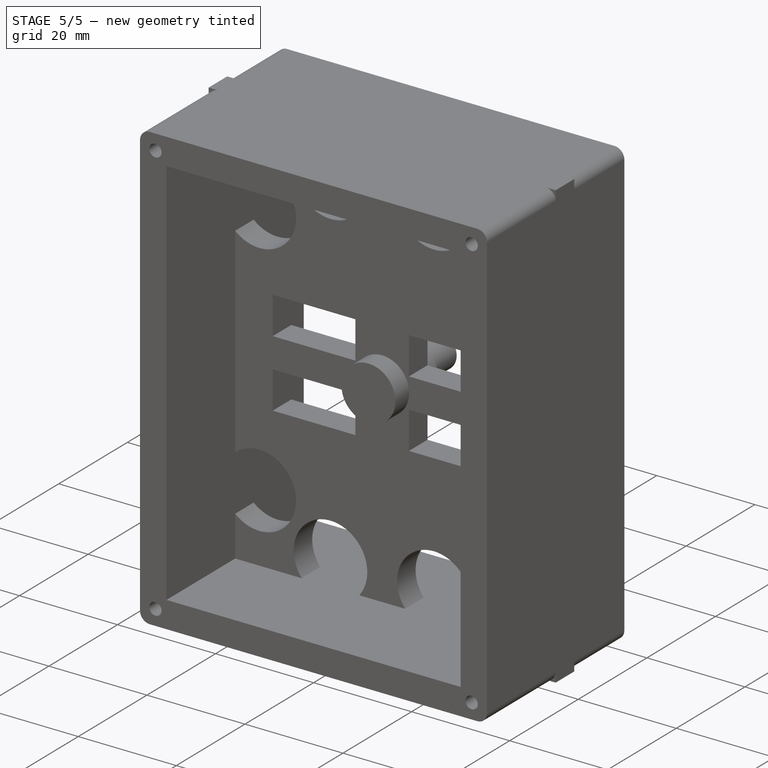
[diagram: stage 5 of 5 — iso view after this stage's code; geometry added in this stage tinted green]
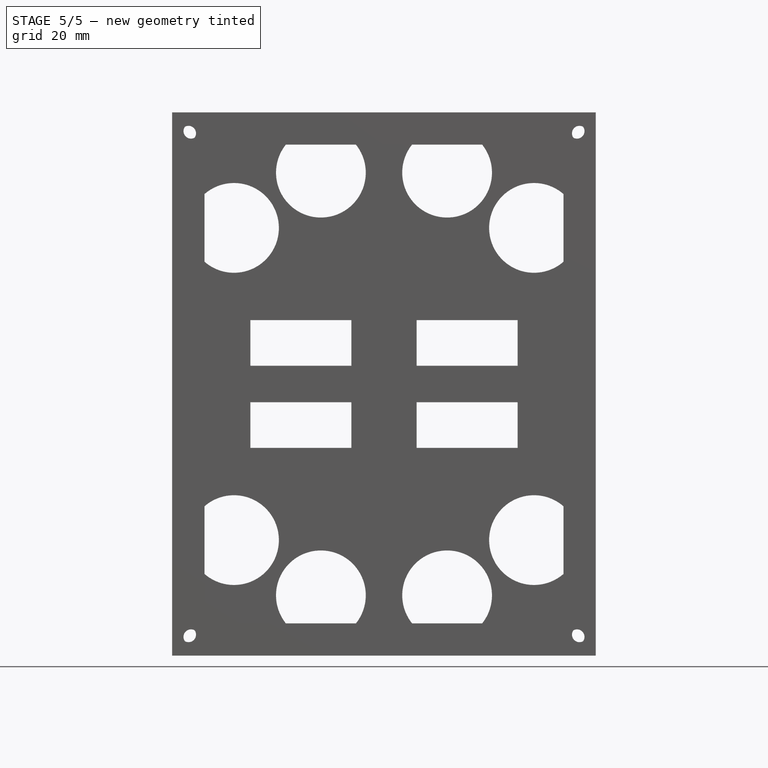
[diagram: stage 5 of 5 — front view after this stage's code; geometry added in this stage tinted green]
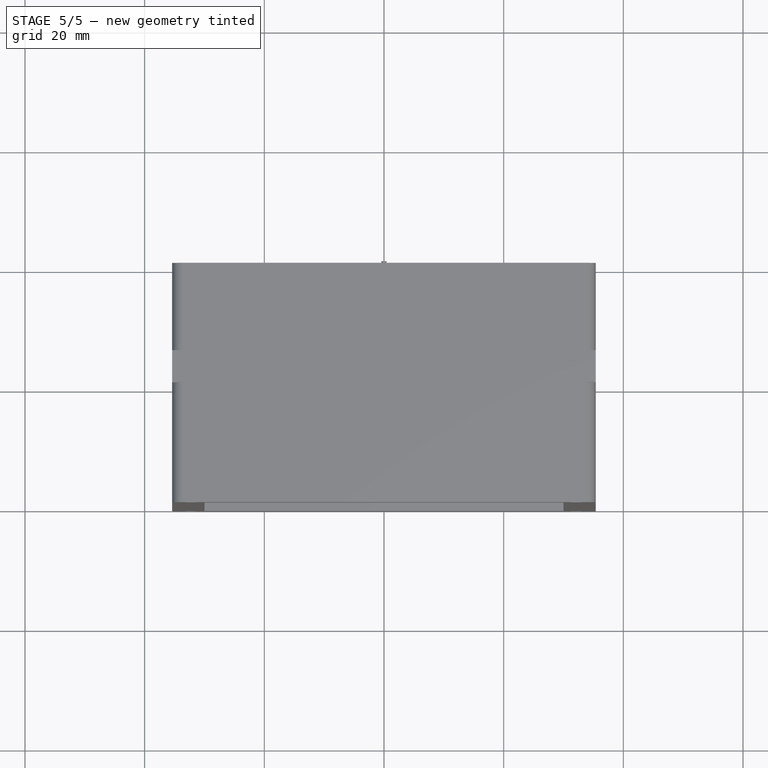
[diagram: stage 5 of 5 — top view after this stage's code; geometry added in this stage tinted green]
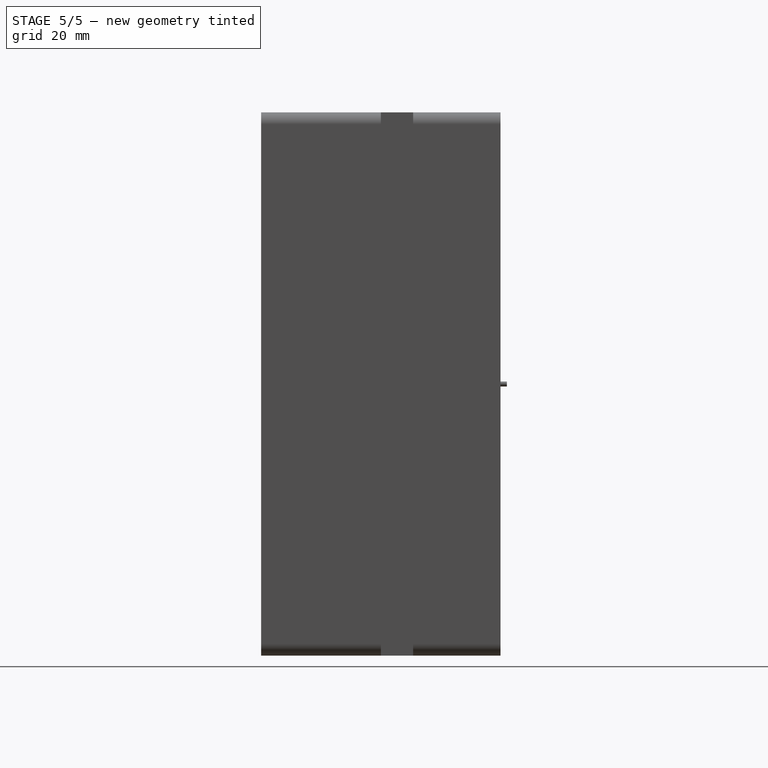
[diagram: stage 5 of 5 — right view after this stage's code; geometry added in this stage tinted green]
FEATURE [PartDesign::Body] Body004  label="mh1"
  AllowCompound = false
  Group = -> [Clone]
  Origin = -> Origin004
  Placement = pos=(100,0,0) rot=(0,0,1;0rad)
  Tip = -> Clone
  expr: .Placement.Base.x = <<sizes>>.mhd_length
FEATURE [PartDesign::FeatureBase] Clone001
  BaseFeature = -> Body001
  Placement = pos=(0,0,0) rot=(0,1,0;3.14159rad)
  Suppressed = false
FEATURE [PartDesign::Body] Body005  label="mh2"
  AllowCompound = false
  Group = -> [Clone001]
  Origin = -> Origin005
  Placement = pos=(-100,0,0) rot=(0,0,1;0rad)
  Tip = -> Clone001
  expr: .Placement.Base.x = -<<sizes>>.mhd_length
FEATURE [PartDesign::FeatureBase] Clone002
  BaseFeature = -> Body001
  Placement = pos=(0,0,0) rot=(0,1,0;-1.5708rad)
  Suppressed = false
FEATURE [PartDesign::Body] Body006  label="mh3"
  AllowCompound = false
  Group = -> [Clone002]
  Origin = -> Origin006
  Placement = pos=(0,0,100) rot=(0,0,1;0rad)
  Tip = -> Clone002
  expr: .Placement.Base.z = <<sizes>>.mhd_length
FEATURE [PartDesign::Body] Body008  label="motorHolder_displacer"
  AllowCompound = false
  Origin = -> Origin008
  Placement = pos=(-5.5,0,0) rot=(0,0,1;0rad)
  expr: .Placement.Base.x = -<<sizes>>.mh_or
FEATURE [Spreadsheet::Sheet] Spreadsheet001  label="sizes"
  cells = A1='motor; A2='motor; B2='height; C2='radius; A3='motor; B3(mh)==<<properties>>.mh; C3(mr)==<<properties>>.mr; A4='shaft; B4(sh)==4.36 mm; C4(sr)==0.41 mm; A5='motor out wires; B5='distance; C5='height; D5='thickness; A6='motor; B6(motor_outWires_distance)==<<properties>>.motor_outWires_distance_ratio * mr * 2; C6(motor_outWires_height)==2 mm; D6(motor_outWires_thickness)==1 mm; A8='frame; A9=1; B9='length; C9='width; D9='height; E9='wall thickness; F9='wall curve radius; G9='screwHolder inner diameter; H9='screwHolder outer diameter; A10='centerBox; B10(cb_length)==8 cm; C10(cb_width)==6 cm; D10(cb_height)==4 cm; E10(cb_wall_thickness)==cb_sh_od + <<properties>>.cb_cushion * 2; F10(cb_wall_curve_radius)==2 mm; G10(cb_screw_id)==<<properties>>.cb_screw_id - <<properties>>.cb_cushion; H10(cb_sh_od)==<<properties>>.cb_si_dia; A11=2; B11='wall thickness; C11='height; D11='base thickness; E11='inner radius; F11='outer radius; A12='motor holder; B12(mh_wallThickness)==2 mm; C12(mh_height)==mh / 2; D12(mh_base_thickness)==4 mm; E12(mh_ir)==mr; F12(mh_or)==mr + mh_wallThickness; A13=3; B13='length; C13='wall thickness; A14='motorHolder displacer; B14(mhd_length)==100 mm; C14(mhd_wall_thickness)==<<properties>>.wall_thickness; A16='peep hole; B16='radius; A17='centerBox_topCap; B17(cb_tc_ph_r)==7.5 mm
FEATURE [App::DocumentObjectGroup] Group  label="props_spreadsheets"
  Group = -> [Spreadsheet001,Spreadsheet]
FEATURE [PartDesign::FeatureBase] Clone004
  BaseFeature = -> Body
  Suppressed = false
FEATURE [PartDesign::Body] Body009  label="motor3"
  AllowCompound = false
  Group = -> [Clone004]
  Origin = -> Origin009
  Placement = pos=(0,0,100) rot=(0,0,1;0rad)
  Tip = -> Clone004
  expr: .Placement.Base.z = <<mh3>>.Placement.Base.z
FEATURE [PartDesign::FeatureBase] Clone005
  BaseFeature = -> Body
  Suppressed = false
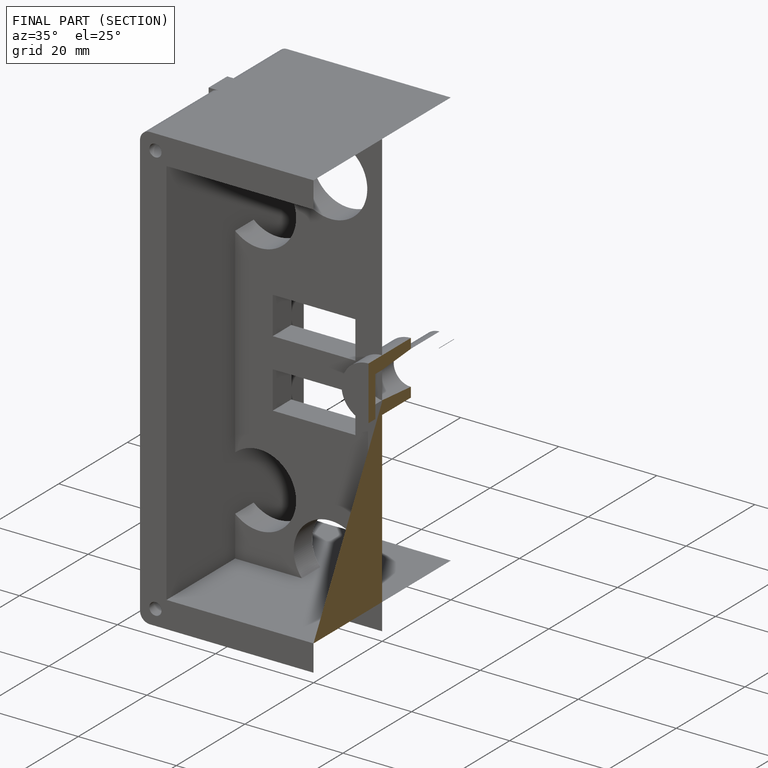
[diagram: finished part — half-section view (interior)]
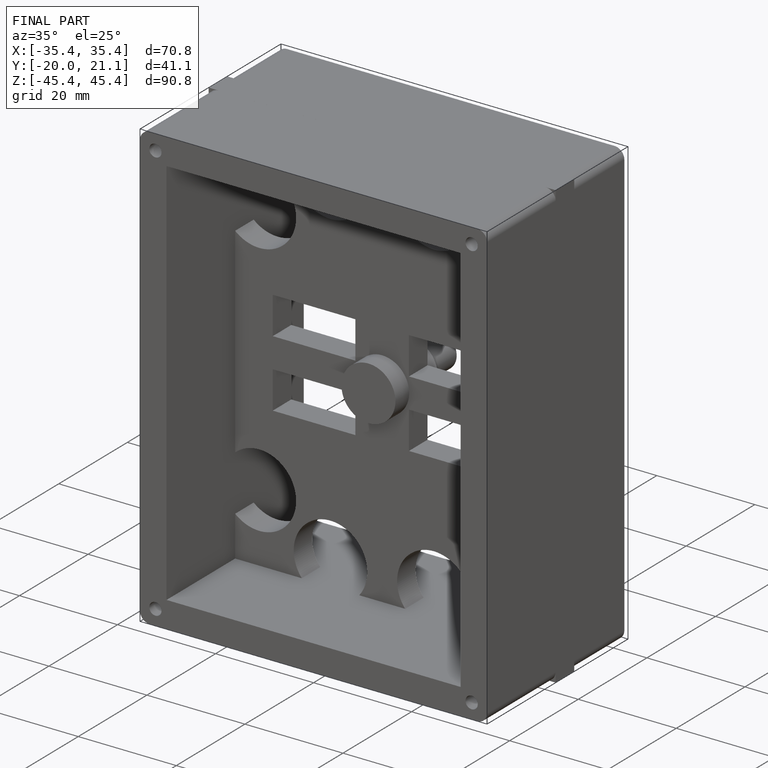
[diagram: finished part — iso view with bounding-box wireframe]
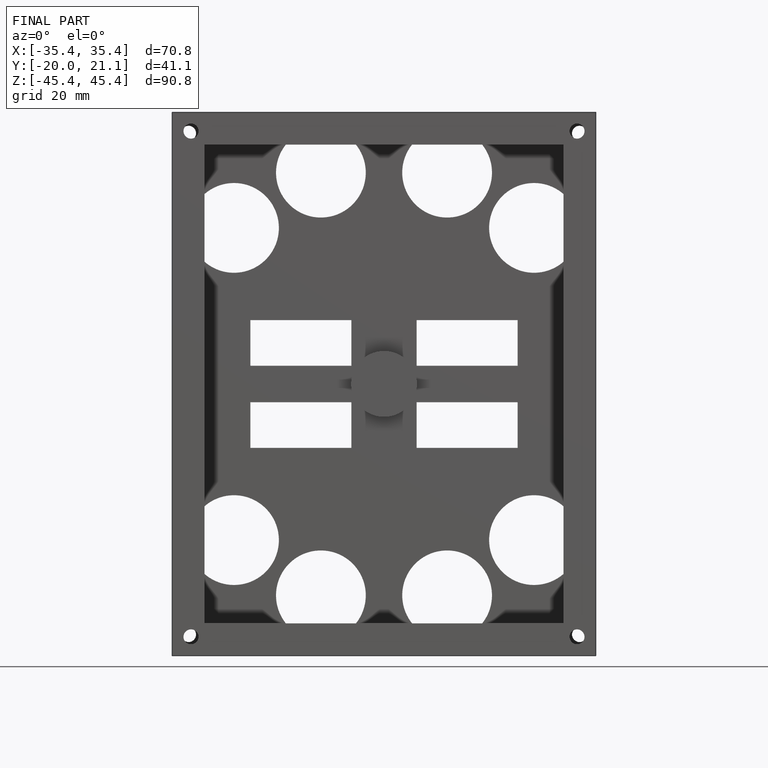
[diagram: finished part — front view with bounding-box wireframe]
